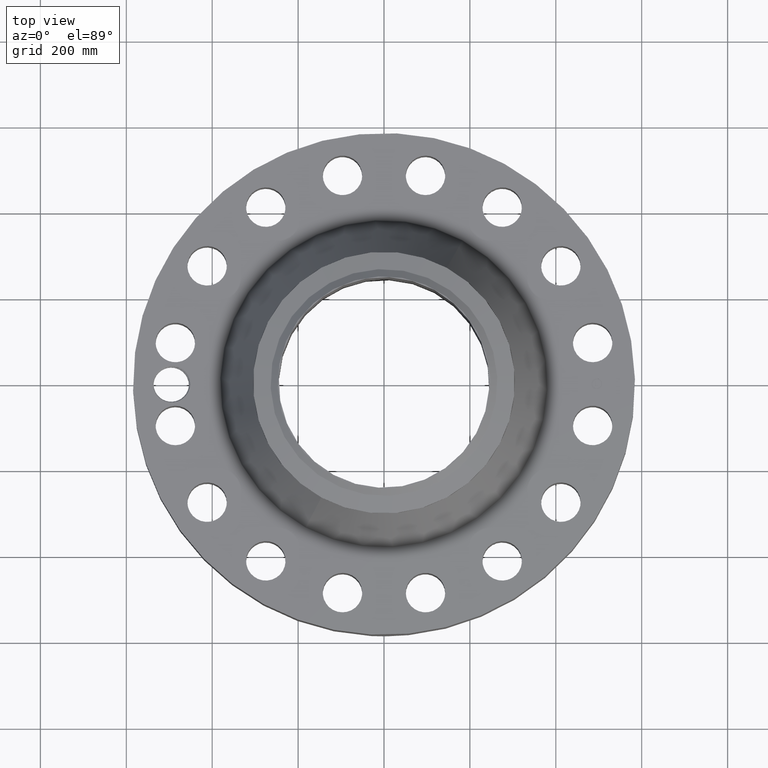
[diagram: clean part render]
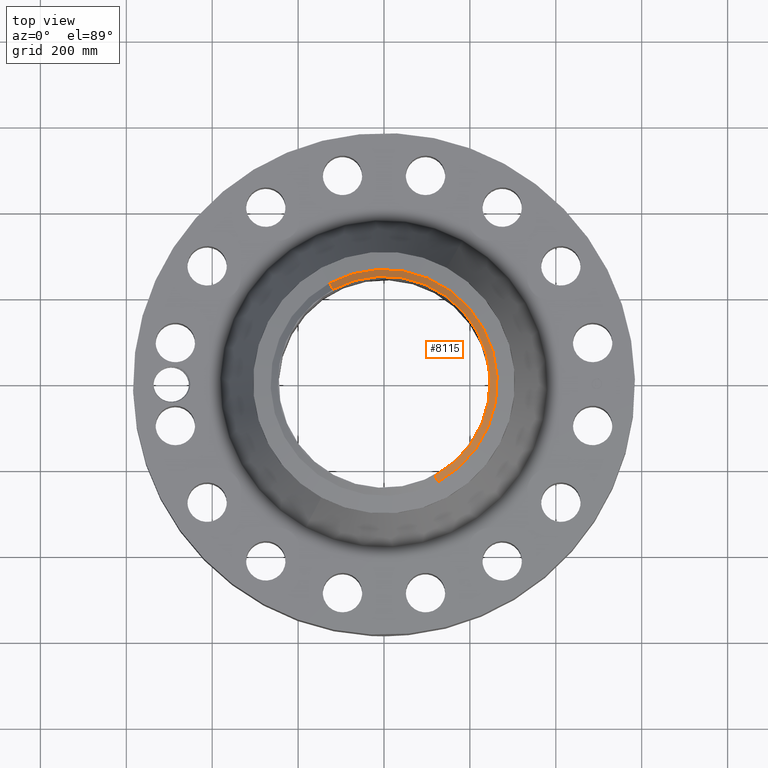
[diagram: same view with one face highlighted and labeled with its STEP entity id]
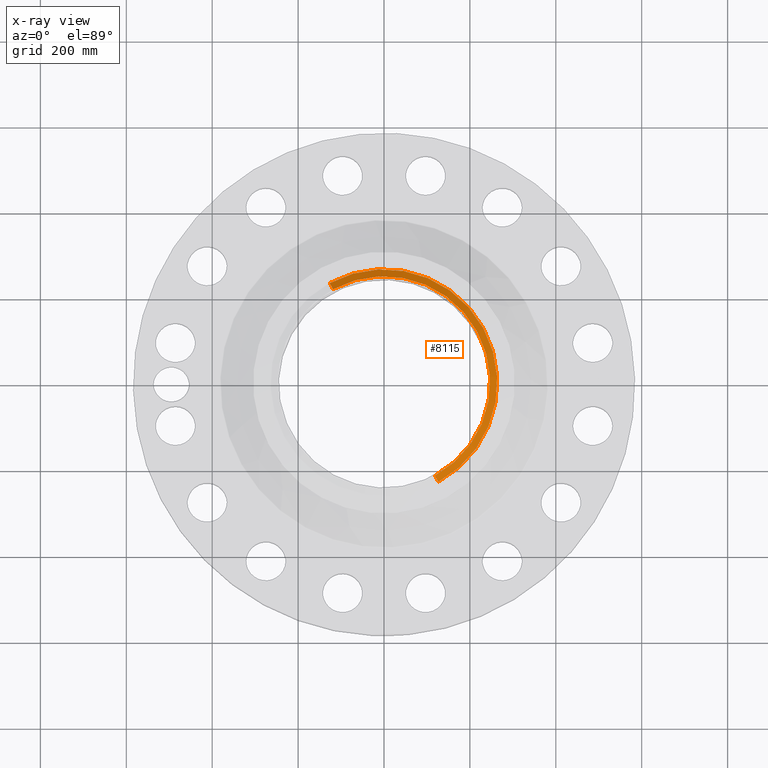
[diagram: x-ray of the same camera — body ghosted, the highlighted face saturated]
A machine part, top view. The second image highlights one B-rep face of the part: STEP entity #8115.
The next image is the same camera in x-ray: the body ghosted, the highlighted face saturated — about 0% of this face is hidden behind the body in this view.
In plain terms, the highlighted conical surface has half-angle 52.5 deg.
Its self-contained STEP definition (entity closure, byte-faithful):
#4540=AXIS2_PLACEMENT_3D('Circle Axis2P3D',#4538,#4539,$) ;
#8076=AXIS2_PLACEMENT_3D('Cone Axis2P3D',#8073,#8074,#8075) ;
#8106=AXIS2_PLACEMENT_3D('Circle Axis2P3D',#8104,#8105,$) ;
#4538=CARTESIAN_POINT('Axis2P3D Location',(0.,0.,16.2500000001)) ;
#4542=CARTESIAN_POINT('Vertex',(4.66708304319,-8.54303820677,16.2500000001)) ;
#4544=CARTESIAN_POINT('Vertex',(-4.66708304319,8.54303820677,16.2500000001)) ;
#8073=CARTESIAN_POINT('Axis2P3D Location',(0.,0.,16.2500000001)) ;
#8078=CARTESIAN_POINT('Line Origine',(-4.82202434574,8.82665635868,16.0020143726)) ;
#8082=CARTESIAN_POINT('Vertex',(-4.97696564829,9.11027451058,15.7540287452)) ;
#8089=CARTESIAN_POINT('Vertex',(4.97696564829,-9.11027451058,15.7540287452)) ;
#8092=CARTESIAN_POINT('Line Origine',(4.82202434574,-8.82665635868,16.0020143726)) ;
#8104=CARTESIAN_POINT('Axis2P3D Location',(0.,0.,15.7540287452)) ;
#4539=DIRECTION('Axis2P3D Direction',(0.,0.,-0.0393700787402)) ;
#8074=DIRECTION('Axis2P3D Direction',(-0.,-0.,-0.0393700787402)) ;
#8075=DIRECTION('Axis2P3D XDirection',(-0.0188750212049,0.0345504945626,0.)) ;
#8079=DIRECTION('Vector Direction',(-0.014974561121,0.02741075027,-0.023966985394)) ;
#8093=DIRECTION('Vector Direction',(0.014974561121,-0.02741075027,-0.023966985394)) ;
#8105=DIRECTION('Axis2P3D Direction',(0.,0.,-0.0393700787402)) ;
#8080=VECTOR('Line Direction',#8079,0.0393700787402) ;
#8094=VECTOR('Line Direction',#8093,0.0393700787402) ;
#8110=ORIENTED_EDGE('',*,*,#4546,.F.) ;
#8111=ORIENTED_EDGE('',*,*,#8096,.T.) ;
#8112=ORIENTED_EDGE('',*,*,#8108,.T.) ;
#8113=ORIENTED_EDGE('',*,*,#8084,.F.) ;
#8115=ADVANCED_FACE('PartBody',(#8114),#8077,.T.) ;
#4541=CIRCLE('generated circle',#4540,9.73474015752) ;
#8107=CIRCLE('generated circle',#8106,10.3811024811) ;
#8077=CONICAL_SURFACE('Cone',#8076,9.73474015752,0.916297857297) ;
#4546=EDGE_CURVE('',#4543,#4545,#4541,.F.) ;
#8084=EDGE_CURVE('',#4545,#8083,#8081,.T.) ;
#8096=EDGE_CURVE('',#4543,#8090,#8095,.T.) ;
#8108=EDGE_CURVE('',#8090,#8083,#8107,.F.) ;
#8109=EDGE_LOOP('',(#8110,#8111,#8112,#8113)) ;
#8114=FACE_OUTER_BOUND('',#8109,.T.) ;
#8081=LINE('Line',#8078,#8080) ;
#8095=LINE('Line',#8092,#8094) ;
#4543=VERTEX_POINT('',#4542) ;
#4545=VERTEX_POINT('',#4544) ;
#8083=VERTEX_POINT('',#8082) ;
#8090=VERTEX_POINT('',#8089) ;